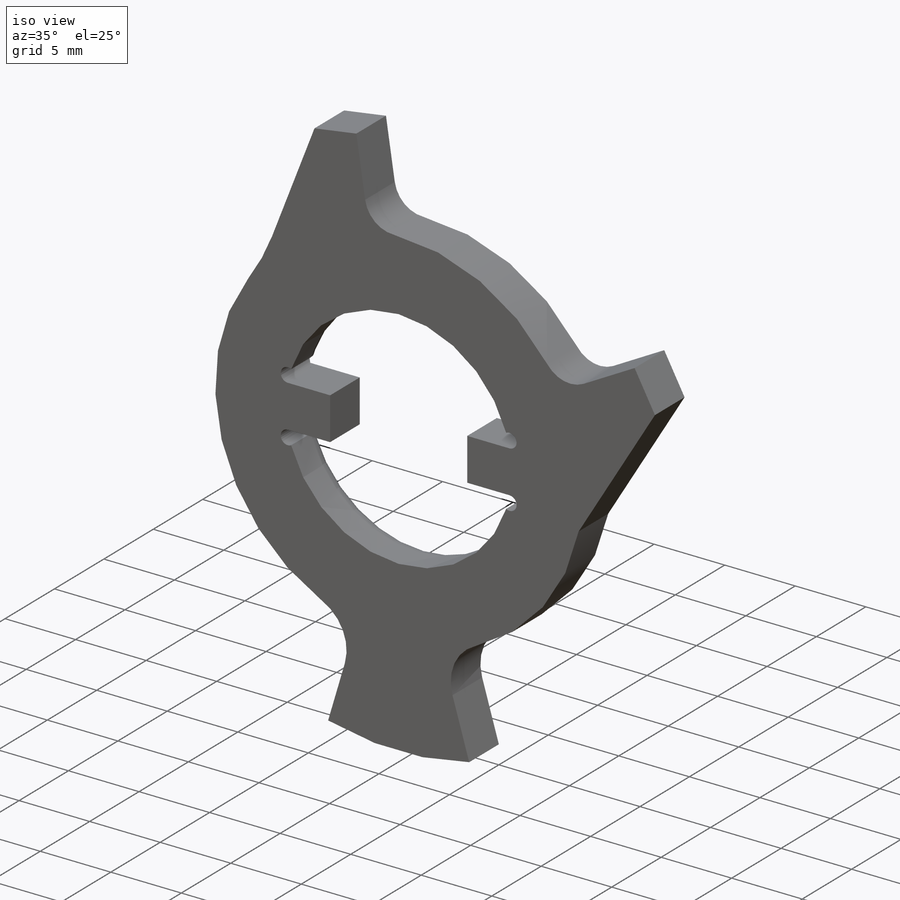
[diagram: iso view]
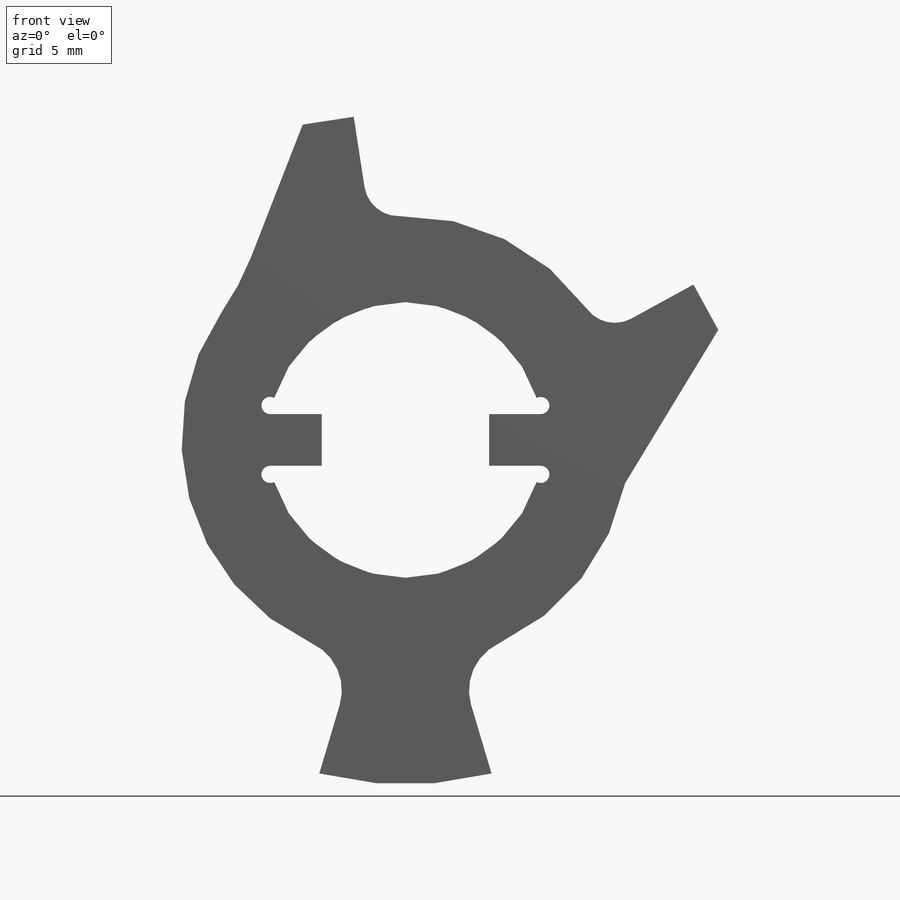
[diagram: front view]
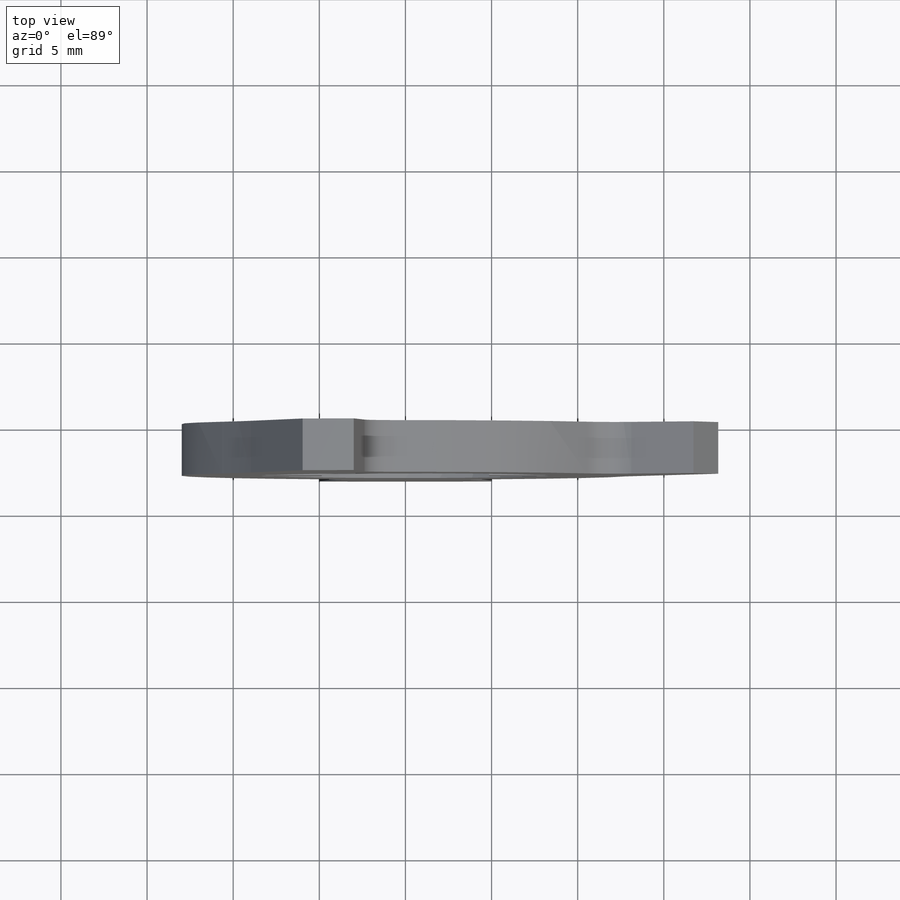
[diagram: top view]
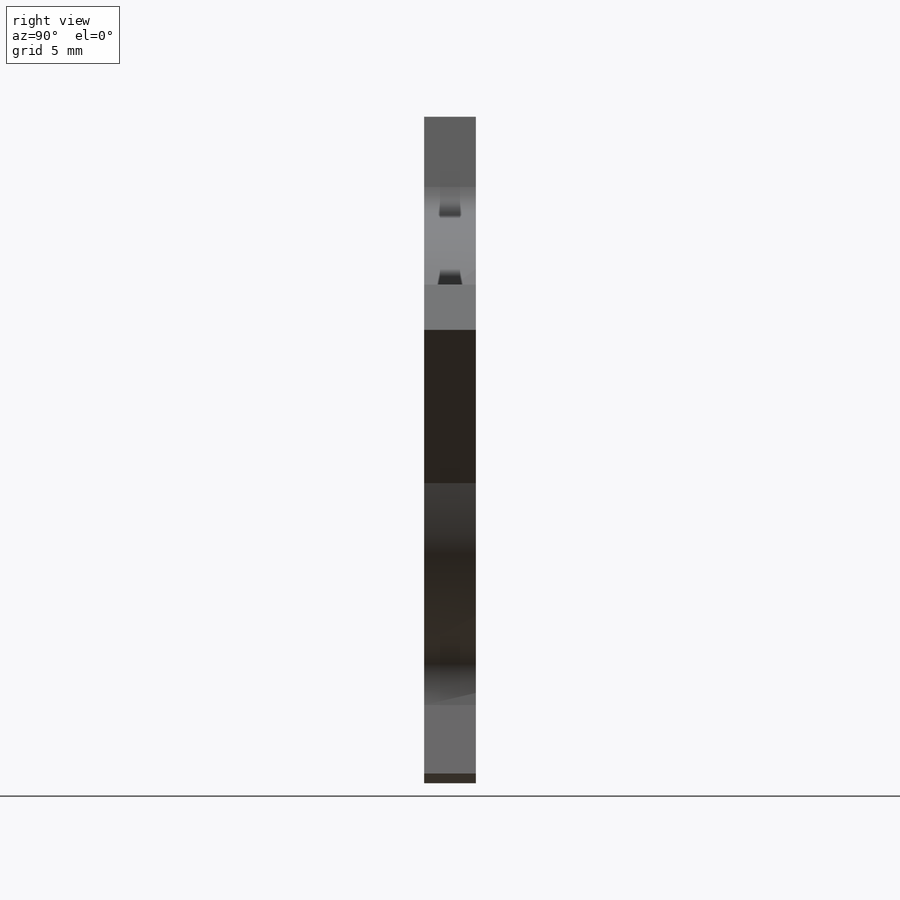
[diagram: right view]
SOLIDWORKS PART (.sldprt)
format: sldprt  version: not decoded by parser v0  size: 296,448 bytes
history: native  units: mm
features: fillet x4, plane x3, sketch x2, material x1, extrude x1, cut_extrude x1 (+12 scaffold rows collapsed)
feature tree (24):
  scaffold x12  (default folders/planes/origin — collapsed)
  material  "Alliage 7079"
  plane  "Face"
  plane  "Dessus"
  plane  "Droite"
  sketch  "Esquisse1"  dims[c1.D1=26.0mm c1.D2=16.0mm c1.D8=40.0mm c1.D11=8.0mm c1.D12=8.0mm c2.D11=8.0mm c2.D3=3.0mm c2.D4=3.0mm c2.D5=19.0mm c2.D6=3.0mm c2.D7=~5.476184mm c3.D7=30.0deg c3.D2=~26.694109mm c4.D2=35.0deg c4.D9=~1.969697mm c4.D10=3.0mm c5.D9=3.0mm c5.D10=5.0mm c5.D12=~4.858117mm c5.D13=~11.459731mm c5.D14=~12.75537mm c5.D15=~16.722027mm c5.D16=~18.163375mm c5.D17=~2.090881mm c5.D18=~4.858117mm c5.D19=~5.965365mm c5.D20=~9.745782mm c6.D12=~4.858117mm c6.D13=~11.459731mm]
  extrude  "Extrusion1"  Depth=3mm
  fillet  "Congé1"  Radius=2mm
  fillet  "Congé2"  Radius=15mm
  fillet  "Congé6"  Radius=1mm
  sketch  "Esquisse2"  dims[D1=1.0mm D2=1.0mm D3=1.0mm D4=1.0mm]
  cut_extrude  "Enlèv. mat.-Extru.2"  [1 undecoded]
  fillet  "Congé7"  Radius=3mm
decode coverage: 7 of 8 modeling features carry decoded parameters
note: ~ marks probable driven/reference dimensions
note: 1 parameter value undecoded
note: suppression state not decoded; provenance and decode notes live in map.json
